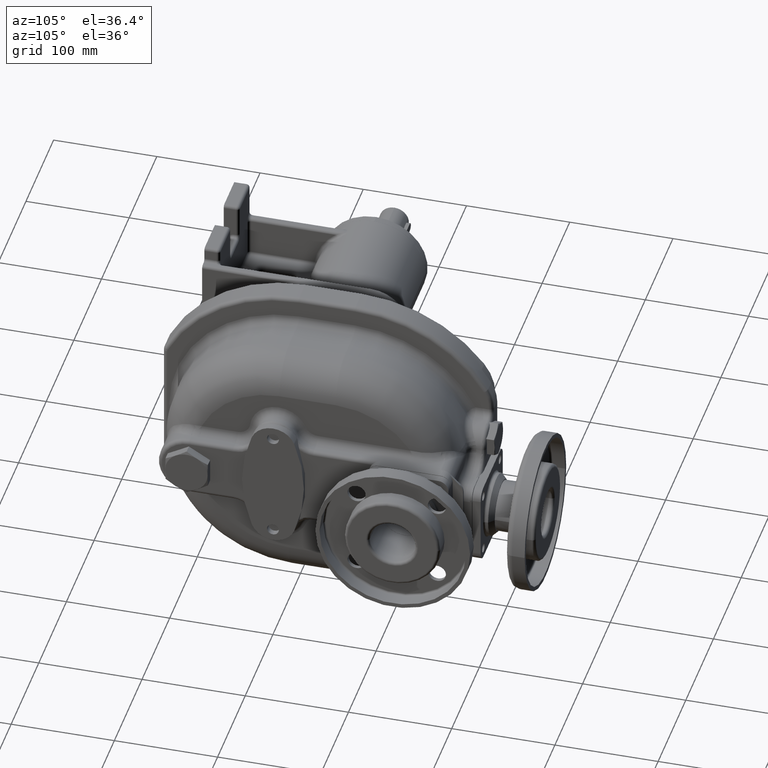
[diagram: clean part render]
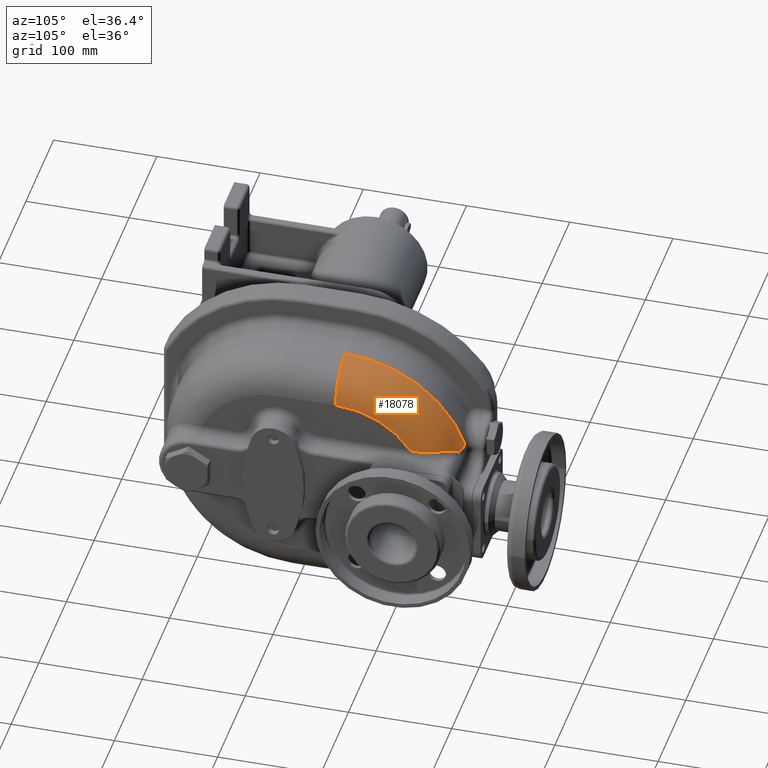
[diagram: same view with one face highlighted and labeled with its STEP entity id]
A machine part, auxiliary view. The second image highlights one B-rep face of the part: STEP entity #18078.
In plain terms, the highlighted toroidal blend (fillet) surface has major radius 87 mm and minor (blend) radius 35 mm.
Its self-contained STEP definition (entity closure, byte-faithful):
#4881=CARTESIAN_POINT('',(2.45E1,5.E1,-9.E0));
#4882=DIRECTION('',(1.E0,0.E0,0.E0));
#4883=DIRECTION('',(0.E0,9.484536082474E-1,3.169160030710E-1));
#4884=AXIS2_PLACEMENT_3D('',#4881,#4882,#4883);
#4905=CARTESIAN_POINT('',(2.45E1,1.657113402054E2,2.966375237441E1));
#4906=CARTESIAN_POINT('',(2.482268752642E1,1.657113401696E2,2.966375236186E1));
#4907=CARTESIAN_POINT('',(2.546807245665E1,1.657027091751E2,2.966141856016E1));
#4908=CARTESIAN_POINT('',(2.643543782609E1,1.656638774291E2,2.965091741037E1));
#4909=CARTESIAN_POINT('',(2.740135419872E1,1.655991880759E2,2.963342127828E1));
#4910=CARTESIAN_POINT('',(2.836505975506E1,1.655086916150E2,2.960893964725E1));
#4911=CARTESIAN_POINT('',(2.932582394664E1,1.653924572502E2,2.957748598379E1));
#4912=CARTESIAN_POINT('',(3.028291467420E1,1.652505739373E2,2.953907734775E1));
#4913=CARTESIAN_POINT('',(3.123560236381E1,1.650831504656E2,2.949373476359E1));
#4914=CARTESIAN_POINT('',(3.218316338836E1,1.648903146170E2,2.944148290750E1));
#4915=CARTESIAN_POINT('',(3.312486342086E1,1.646722166718E2,2.938235108860E1));
#4916=CARTESIAN_POINT('',(3.405995402338E1,1.644290333274E2,2.931637444057E1));
#4917=CARTESIAN_POINT('',(3.498776343061E1,1.641609426737E2,2.924358680280E1));
#4918=CARTESIAN_POINT('',(3.590762302383E1,1.638681366861E2,2.916402460662E1));
#4919=CARTESIAN_POINT('',(3.651507159297E1,1.636566114659E2,2.910649719320E1));
#4920=CARTESIAN_POINT('',(3.681723301976E1,1.635468087233E2,2.907662046386E1));
#4960=CARTESIAN_POINT('',(5.074320591176E1,1.501859124420E2,3.679927425922E1));
#4961=CARTESIAN_POINT('',(5.058936662543E1,1.503833059043E2,3.678679080129E1));
#4962=CARTESIAN_POINT('',(5.027582583773E1,1.507809898017E2,3.675404578181E1));
#4963=CARTESIAN_POINT('',(4.978784475528E1,1.513854118228E2,3.668081801128E1));
#4964=CARTESIAN_POINT('',(4.928150201866E1,1.519976634908E2,3.658255649459E1));
#4965=CARTESIAN_POINT('',(4.875707690721E1,1.526164760535E2,3.645849701325E1));
#4966=CARTESIAN_POINT('',(4.821450696850E1,1.532410213371E2,3.630784293126E1));
#4967=CARTESIAN_POINT('',(4.765402706200E1,1.538701409345E2,3.612988250461E1));
#4968=CARTESIAN_POINT('',(4.707593989711E1,1.545026441071E2,3.592395811686E1));
#4969=CARTESIAN_POINT('',(4.648072595652E1,1.551371975189E2,3.568950169469E1));
#4970=CARTESIAN_POINT('',(4.586903684485E1,1.557723589549E2,3.542604698785E1));
#4971=CARTESIAN_POINT('',(4.524173543882E1,1.564065610338E2,3.513325521171E1));
#4972=CARTESIAN_POINT('',(4.459992906651E1,1.570381095218E2,3.481094208436E1));
#4973=CARTESIAN_POINT('',(4.394501681936E1,1.576651734967E2,3.445911347495E1));
#4974=CARTESIAN_POINT('',(4.327874977549E1,1.582857713564E2,3.407801243393E1));
#4975=CARTESIAN_POINT('',(4.260330450572E1,1.588977538211E2,3.366817999968E1));
#4976=CARTESIAN_POINT('',(4.192138109702E1,1.594987755904E2,3.323054062371E1));
#4977=CARTESIAN_POINT('',(4.123631529242E1,1.600862664021E2,3.276651193871E1));
#4978=CARTESIAN_POINT('',(4.055221733635E1,1.606573905109E2,3.227815604076E1));
#4979=CARTESIAN_POINT('',(3.987407502138E1,1.612090419004E2,3.176833786282E1));
#4980=CARTESIAN_POINT('',(3.920790053412E1,1.617378006045E2,3.124096160516E1));
#4981=CARTESIAN_POINT('',(3.856064414154E1,1.622400519131E2,3.070108910804E1));
#4982=CARTESIAN_POINT('',(3.793992744125E1,1.627121908599E2,3.015494719204E1));
#4983=CARTESIAN_POINT('',(3.735381569152E1,1.631506945152E2,2.960998711353E1));
#4984=CARTESIAN_POINT('',(3.699157911724E1,1.634184140525E2,2.925333163477E1));
#4985=CARTESIAN_POINT('',(3.681723301976E1,1.635468087233E2,2.907662046386E1));
#4987=CARTESIAN_POINT('',(5.95E1,1.225603197348E2,3.9E1));
#4988=CARTESIAN_POINT('',(5.949999997815E1,1.230361142065E2,3.895321290904E1));
#4989=CARTESIAN_POINT('',(5.948818915132E1,1.239781409682E2,3.886158344935E1));
#4990=CARTESIAN_POINT('',(5.943630240173E1,1.253597866034E2,3.873003169215E1));
#4991=CARTESIAN_POINT('',(5.935139131998E1,1.267124779125E2,3.860392629130E1));
#4992=CARTESIAN_POINT('',(5.923450980339E1,1.280369792800E2,3.848300112504E1));
#4993=CARTESIAN_POINT('',(5.908662858188E1,1.293343181167E2,3.836697322269E1));
#4994=CARTESIAN_POINT('',(5.890865397228E1,1.306052397400E2,3.825559706542E1));
#4995=CARTESIAN_POINT('',(5.870143330986E1,1.318504152834E2,3.814864299020E1));
#4996=CARTESIAN_POINT('',(5.846576496129E1,1.330704007527E2,3.804590064347E1));
#4997=CARTESIAN_POINT('',(5.820240542395E1,1.342656636831E2,3.794717568912E1));
#4998=CARTESIAN_POINT('',(5.791207552952E1,1.354365913736E2,3.785228847559E1));
#4999=CARTESIAN_POINT('',(5.759546553062E1,1.365835024011E2,3.776107243221E1));
#5000=CARTESIAN_POINT('',(5.725323955204E1,1.377066549400E2,3.767337283054E1));
#5001=CARTESIAN_POINT('',(5.688603935135E1,1.388062544432E2,3.758904565741E1));
#5002=CARTESIAN_POINT('',(5.649448757881E1,1.398824601072E2,3.750795664556E1));
#5003=CARTESIAN_POINT('',(5.607919059026E1,1.409353905351E2,3.742998041810E1));
#5004=CARTESIAN_POINT('',(5.564074086884E1,1.419651287187E2,3.735499973148E1));
#5005=CARTESIAN_POINT('',(5.517971917162E1,1.429717262849E2,3.728290481307E1));
#5006=CARTESIAN_POINT('',(5.469669639573E1,1.439552073685E2,3.721359276514E1));
#5007=CARTESIAN_POINT('',(5.419223457652E1,1.449155729418E2,3.714696696167E1));
#5008=CARTESIAN_POINT('',(5.366689231960E1,1.458527967887E2,3.708293708657E1));
#5009=CARTESIAN_POINT('',(5.312122184601E1,1.467668365507E2,3.702141801434E1));
#5010=CARTESIAN_POINT('',(5.255577276963E1,1.476576324453E2,3.696232996961E1));
#5011=CARTESIAN_POINT('',(5.197107583008E1,1.485251318805E2,3.690559596669E1));
#5012=CARTESIAN_POINT('',(5.136770570424E1,1.493692071024E2,3.685114880461E1));
#5013=CARTESIAN_POINT('',(5.095330282499E1,1.499163335016E2,3.681632374518E1));
#5014=CARTESIAN_POINT('',(5.074320591176E1,1.501859124420E2,3.679927425922E1));
#5025=CARTESIAN_POINT('',(5.95E1,5.E1,-9.E0));
#5026=DIRECTION('',(1.E0,0.E0,0.E0));
#5027=DIRECTION('',(0.E0,8.340266636191E-1,5.517241379280E-1));
#5028=AXIS2_PLACEMENT_3D('',#5025,#5026,#5027);
#8070=CARTESIAN_POINT('',(2.45E1,5.E1,7.8E1));
#8071=DIRECTION('',(0.E0,-1.E0,0.E0));
#8072=DIRECTION('',(1.E0,0.E0,0.E0));
#8073=AXIS2_PLACEMENT_3D('',#8070,#8071,#8072);
#10011=CARTESIAN_POINT('',(5.95E1,5.E1,7.8E1));
#10013=VERTEX_POINT('',#10011);
#10015=CARTESIAN_POINT('',(2.45E1,5.E1,1.13E2));
#10016=VERTEX_POINT('',#10015);
#10017=CARTESIAN_POINT('',(2.45E1,1.657113402062E2,2.966375237466E1));
#10018=VERTEX_POINT('',#10017);
#10023=CARTESIAN_POINT('',(5.95E1,1.225603197349E2,3.899999999974E1));
#10024=VERTEX_POINT('',#10023);
#10025=VERTEX_POINT('',#4920);
#10136=VERTEX_POINT('',#5014);
#18061=CARTESIAN_POINT('',(2.45E1,5.E1,-9.E0));
#18062=DIRECTION('',(-1.E0,0.E0,0.E0));
#18063=DIRECTION('',(0.E0,-5.822871572472E-1,-8.129831895587E-1));
#18064=AXIS2_PLACEMENT_3D('',#18061,#18062,#18063);
#18065=TOROIDAL_SURFACE('',#18064,8.7E1,3.5E1);
#18067=ORIENTED_EDGE('',*,*,#18066,.T.);
#18069=ORIENTED_EDGE('',*,*,#18068,.T.);
#18070=ORIENTED_EDGE('',*,*,#17681,.F.);
#18071=ORIENTED_EDGE('',*,*,#18049,.T.);
#18073=ORIENTED_EDGE('',*,*,#18072,.F.);
#18075=ORIENTED_EDGE('',*,*,#18074,.F.);
#18076=EDGE_LOOP('',(#18067,#18069,#18070,#18071,#18073,#18075));
#18077=FACE_OUTER_BOUND('',#18076,.F.);
#18078=ADVANCED_FACE('',(#18077),#18065,.T.);
#4885=CIRCLE('',#4884,1.22E2);
#4921=B_SPLINE_CURVE_WITH_KNOTS('',3,(#4905,#4906,#4907,#4908,#4909,#4910,#4911,
#4912,#4913,#4914,#4915,#4916,#4917,#4918,#4919,#4920),.UNSPECIFIED.,.F.,.F.,(4,
1,1,1,1,1,1,1,1,1,1,1,1,4),(0.E0,7.692307692308E-2,1.538461538462E-1,
2.307692307692E-1,3.076923076923E-1,3.846153846154E-1,4.615384615385E-1,
5.384615384615E-1,6.153846153846E-1,6.923076923077E-1,7.692307692308E-1,
8.461538461538E-1,9.230769230769E-1,1.E0),.UNSPECIFIED.);
#4986=B_SPLINE_CURVE_WITH_KNOTS('',3,(#4960,#4961,#4962,#4963,#4964,#4965,#4966,
#4967,#4968,#4969,#4970,#4971,#4972,#4973,#4974,#4975,#4976,#4977,#4978,#4979,
#4980,#4981,#4982,#4983,#4984,#4985),.UNSPECIFIED.,.F.,.F.,(4,1,1,1,1,1,1,1,1,1,
1,1,1,1,1,1,1,1,1,1,1,1,1,4),(0.E0,4.347826086957E-2,8.695652173913E-2,
1.304347826087E-1,1.739130434783E-1,2.173913043478E-1,2.608695652174E-1,
3.043478260870E-1,3.478260869565E-1,3.913043478261E-1,4.347826086957E-1,
4.782608695652E-1,5.217391304348E-1,5.652173913043E-1,6.086956521739E-1,
6.521739130435E-1,6.956521739130E-1,7.391304347826E-1,7.826086956522E-1,
8.260869565217E-1,8.695652173913E-1,9.130434782609E-1,9.565217391304E-1,1.E0),
.UNSPECIFIED.);
#5015=B_SPLINE_CURVE_WITH_KNOTS('',3,(#4987,#4988,#4989,#4990,#4991,#4992,#4993,
#4994,#4995,#4996,#4997,#4998,#4999,#5000,#5001,#5002,#5003,#5004,#5005,#5006,
#5007,#5008,#5009,#5010,#5011,#5012,#5013,#5014),.UNSPECIFIED.,.F.,.F.,(4,1,1,1,
1,1,1,1,1,1,1,1,1,1,1,1,1,1,1,1,1,1,1,1,1,4),(0.E0,4.E-2,8.E-2,1.2E-1,1.6E-1,
2.E-1,2.4E-1,2.8E-1,3.2E-1,3.6E-1,4.E-1,4.4E-1,4.8E-1,5.2E-1,5.6E-1,6.E-1,
6.4E-1,6.8E-1,7.2E-1,7.6E-1,8.E-1,8.4E-1,8.8E-1,9.2E-1,9.6E-1,1.E0),
.UNSPECIFIED.);
#5029=CIRCLE('',#5028,8.7E1);
#8074=CIRCLE('',#8073,3.5E1);
#17681=EDGE_CURVE('',#10018,#10016,#4885,.T.);
#18049=EDGE_CURVE('',#10018,#10025,#4921,.T.);
#18066=EDGE_CURVE('',#10024,#10013,#5029,.T.);
#18068=EDGE_CURVE('',#10013,#10016,#8074,.T.);
#18072=EDGE_CURVE('',#10136,#10025,#4986,.T.);
#18074=EDGE_CURVE('',#10024,#10136,#5015,.T.);